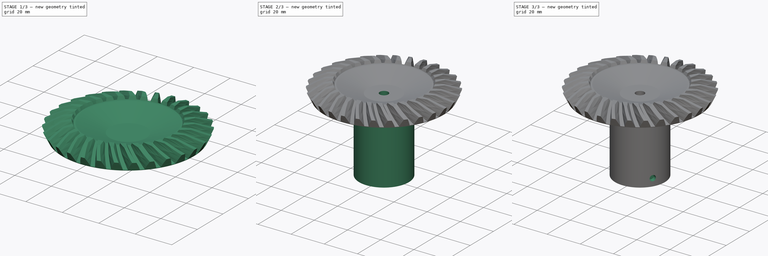
[diagram: build sequence overview — one tinted view per stage of 3, left to right]
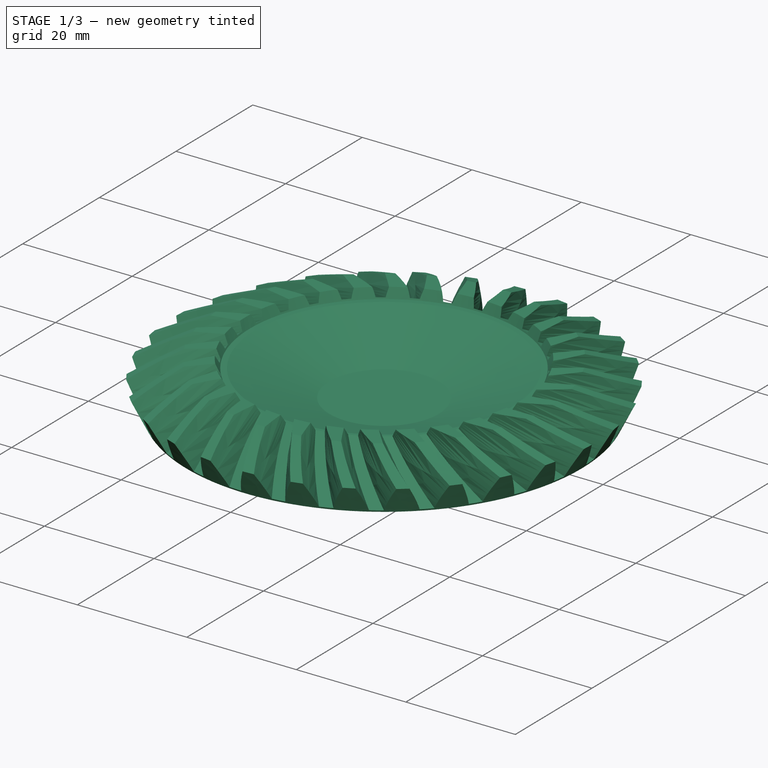
[diagram: stage 1 of 3 — iso view after this stage's code; geometry added in this stage tinted green]
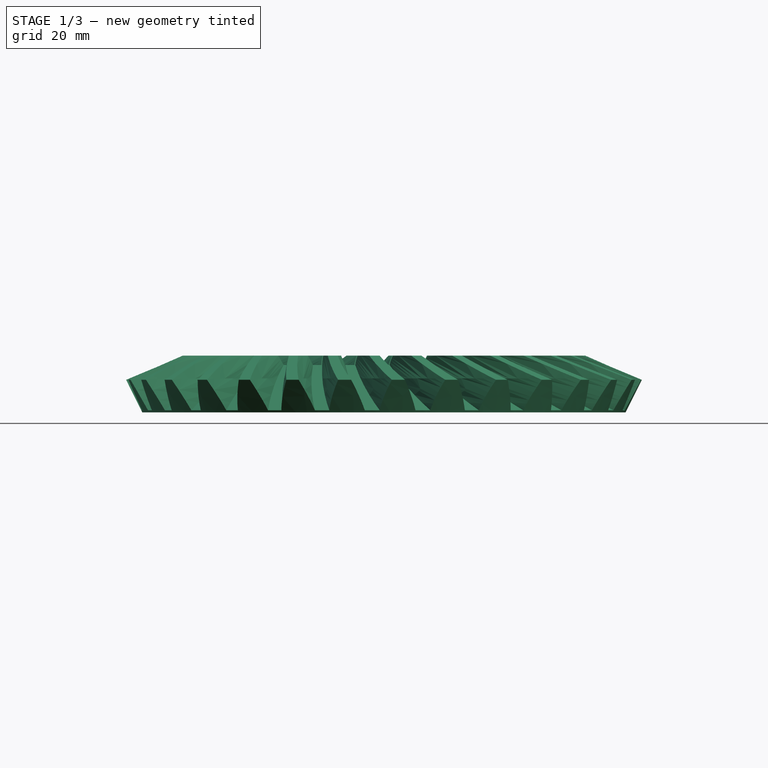
[diagram: stage 1 of 3 — front view after this stage's code; geometry added in this stage tinted green]
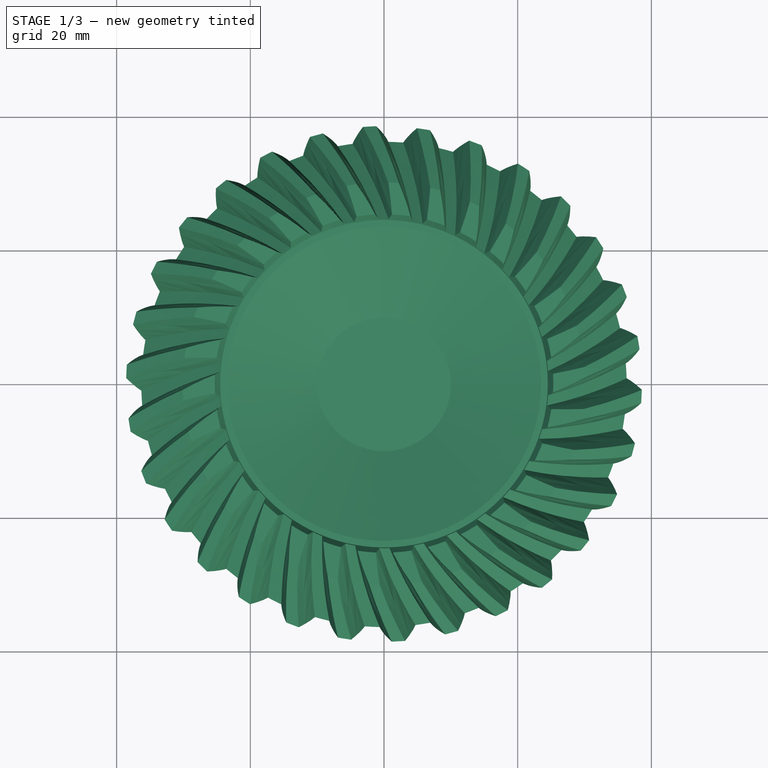
[diagram: stage 1 of 3 — top view after this stage's code; geometry added in this stage tinted green]
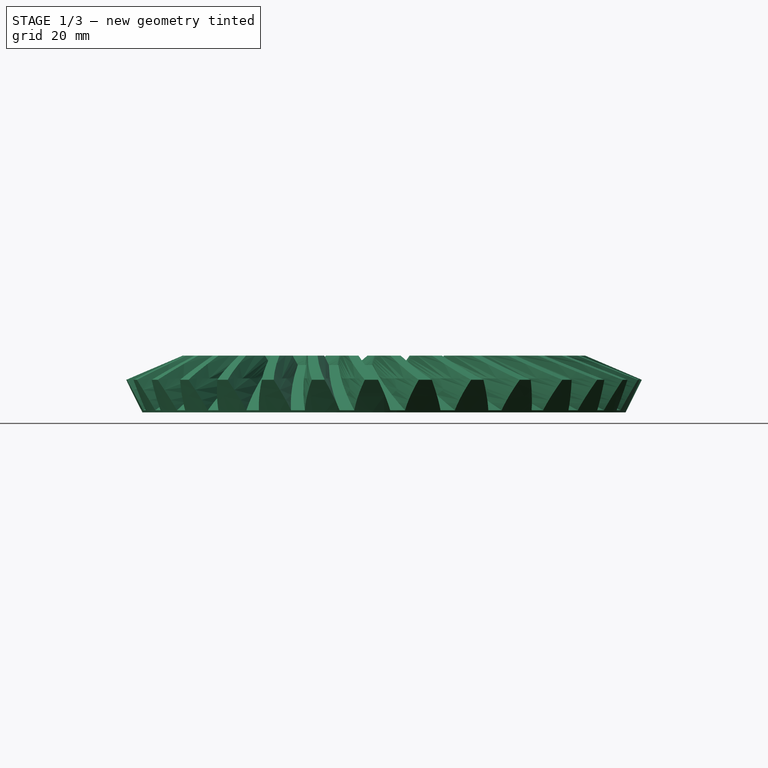
[diagram: stage 1 of 3 — right view after this stage's code; geometry added in this stage tinted green]
FCSTD DOCUMENT  (FreeCAD 0.19R24276 (Git))
Label: Art56GearPlate
License: All rights reserved
LicenseURL: http://en.wikipedia.org/wiki/All_rights_reserved
objects: Sketcher::SketchObject×5, PartDesign::Pocket×3, PartDesign::CoordinateSystem×3, PartDesign::Line×3, Part::Feature×1, Part::FeaturePython×1, PartDesign::FeatureBase×1, PartDesign::Groove×1, Spreadsheet::Sheet×1, PartDesign::Revolution×1, PartDesign::Plane×1, PartDesign::PolarPattern×1, PartDesign::Body×1
note: 27 computed .brp shape members not serialized (recipe doc carries the construction recipe); baked Part::Feature solids carry a one-line shape summary decoded from their .brp

FEATURE [Part::Feature] Part__Feature  label="Bevel Gear Plate"
  Placement = pos=(0,0,21.4333) rot=(0,0,-1;0.047997rad)
  shape: bbox 77.38 x 77.37 x 10.38 mm, 182 faces (baked)
FEATURE [Part::FeaturePython] bevelgear  # WARN: FeaturePython — macro-defined, semantics opaque (R4)
  backlash = 0
  beta = -10
  clearance = 0.1
  height = 10.2
  module = 2.85
  numpoints = 20
  pitch_angle = 63.435
  pressure_angle = 20
  reset_origin = true
  teeth = 30
  version = 0.0.3
FEATURE [PartDesign::FeatureBase] BaseFeature
  BaseFeature = -> bevelgear
FEATURE [Sketcher::SketchObject] Sketch
  FullyConstrained = true
  MapMode = 5
  Placement = pos=(0,0,0) rot=(1,0,0;1.5708rad)
  Support = -> [XZ_Plane]
  sketch-geometry (12):
    g0: LineSegment StartX=36.15 StartY=0 StartZ=0 EndX=41.15 EndY=10 EndZ=0
    g1: LineSegment StartX=41.15 StartY=10 StartZ=0 EndX=61.15 EndY=10 EndZ=0
    g2: LineSegment StartX=61.15 StartY=10 StartZ=0 EndX=61.15 EndY=0 EndZ=0
    g3: LineSegment StartX=61.15 StartY=0 StartZ=0 EndX=36.15 EndY=0 EndZ=0
    g4: LineSegment StartX=0 StartY=2 StartZ=0 EndX=10 EndY=2 EndZ=0
    g5: LineSegment StartX=10 StartY=2 StartZ=0 EndX=23.5 EndY=6.85 EndZ=0
    g6: LineSegment StartX=23.5 StartY=6.85 StartZ=0 EndX=24.5 EndY=6.85 EndZ=0
    g7: LineSegment StartX=24.5 StartY=6.85 StartZ=0 EndX=25.325 EndY=8.5 EndZ=0
    g8: LineSegment StartX=0 StartY=17 StartZ=0 EndX=0 EndY=2 EndZ=0
    g9: LineSegment StartX=25.325 StartY=8.5 StartZ=0 EndX=35 EndY=8.5 EndZ=0
    g10: LineSegment StartX=35 StartY=8.5 StartZ=0 EndX=35 EndY=17 EndZ=0
    g11: LineSegment StartX=35 StartY=17 StartZ=0 EndX=0 EndY=17 EndZ=0
  constraints (36):
    c: PointOnObject(g0,g-1)
    c: Coincident(g0,g1)
    c: Horizontal(g1)
    c: Coincident(g1,g2)
    c: Vertical(g2)
    c: Coincident(g2,g3)
    c: Coincident(g3,g0)
    c: Horizontal(g3)
    c: Angle(g0,g-2) = 0.463647
    c: DistanceX(g-1,g0) = 36.15
    c: DistanceX(g3,g3) = 25
    c: DistanceY(g2,g2) = 10
    c: PointOnObject(g4,g-2)
    c: Horizontal(g4)
    c: Coincident(g4,g5)
    c: Coincident(g5,g6)
    c: Coincident(g6,g7)
    c: PointOnObject(g8,g-2)
    c: Coincident(g8,g4)
    c: DistanceX(g4,g4) = 10
    c: DistanceY(g5,g5) = 4.85
    c: DistanceX(g4,g5) = 23.5
    c: DistanceX(g6,g6) = 1
    c: Parallel(g7,g0)
    c: DistanceY(g8,g8) = 15
    c: Horizontal(g6)
    c: DistanceY(g-1,g4) = 2
    c: Coincident(g7,g9)
    c: Horizontal(g9)
    c: Coincident(g9,g10)
    c: Vertical(g10)
    c: Coincident(g10,g11)
    c: Coincident(g11,g8)
    c: Horizontal(g11)
    c: DistanceY(g-1,g7) = 8.5
    c: DistanceX(g11,g11) = 35
FEATURE [PartDesign::Groove] Groove
  Angle = 360
  Axis = (0,2e-16,1)
  Base = (0,0,0)
  BaseFeature = -> BaseFeature
  Profile = -> Sketch
  ReferenceAxis = -> Sketch [V_Axis]
  Refine = true
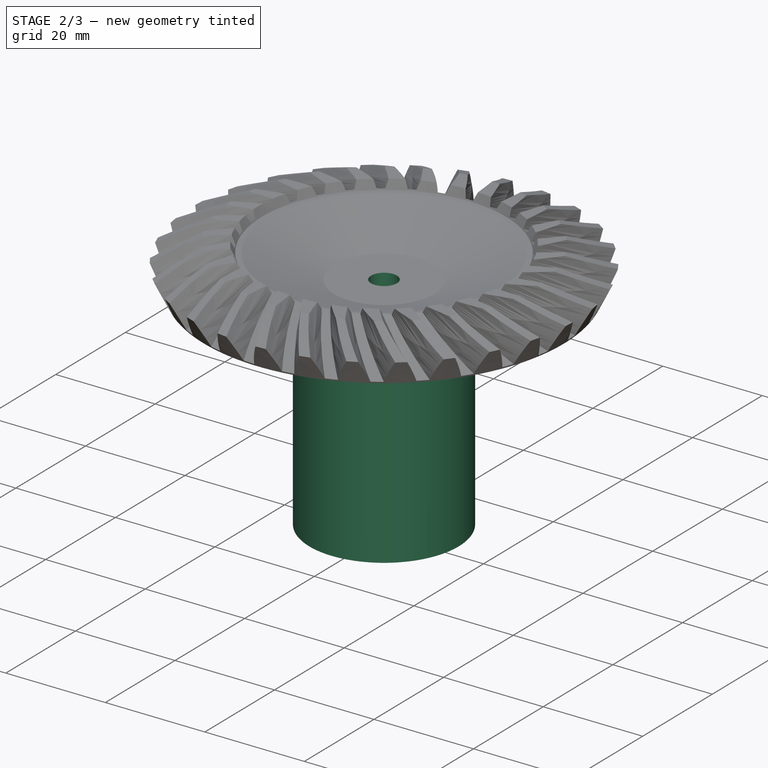
[diagram: stage 2 of 3 — iso view after this stage's code; geometry added in this stage tinted green]
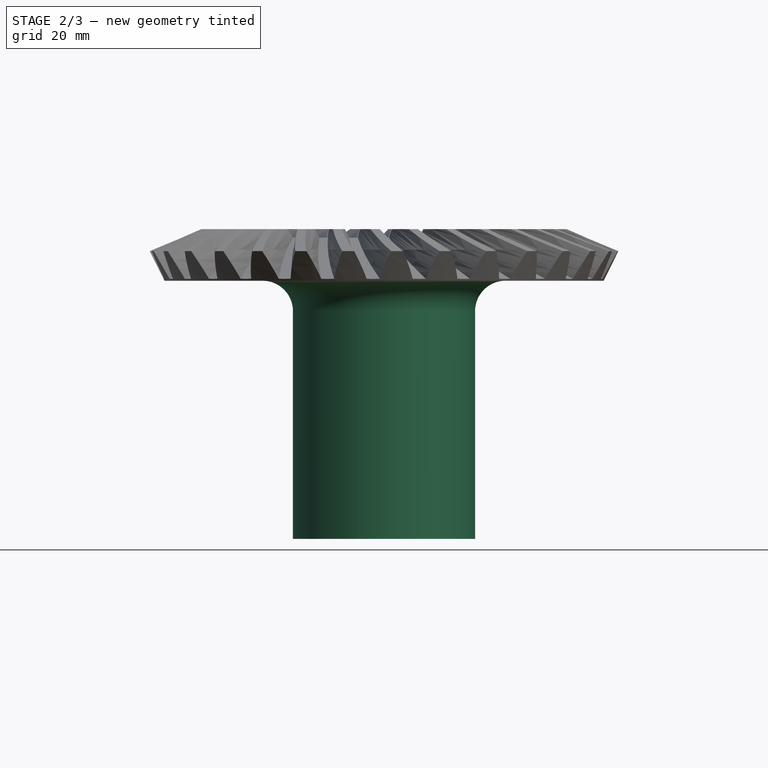
[diagram: stage 2 of 3 — front view after this stage's code; geometry added in this stage tinted green]
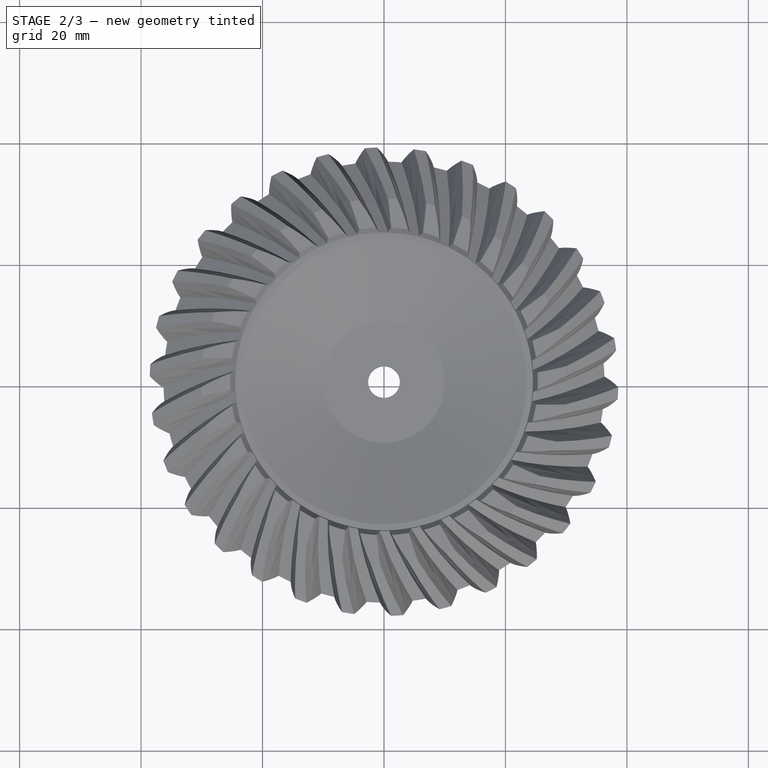
[diagram: stage 2 of 3 — top view after this stage's code; geometry added in this stage tinted green]
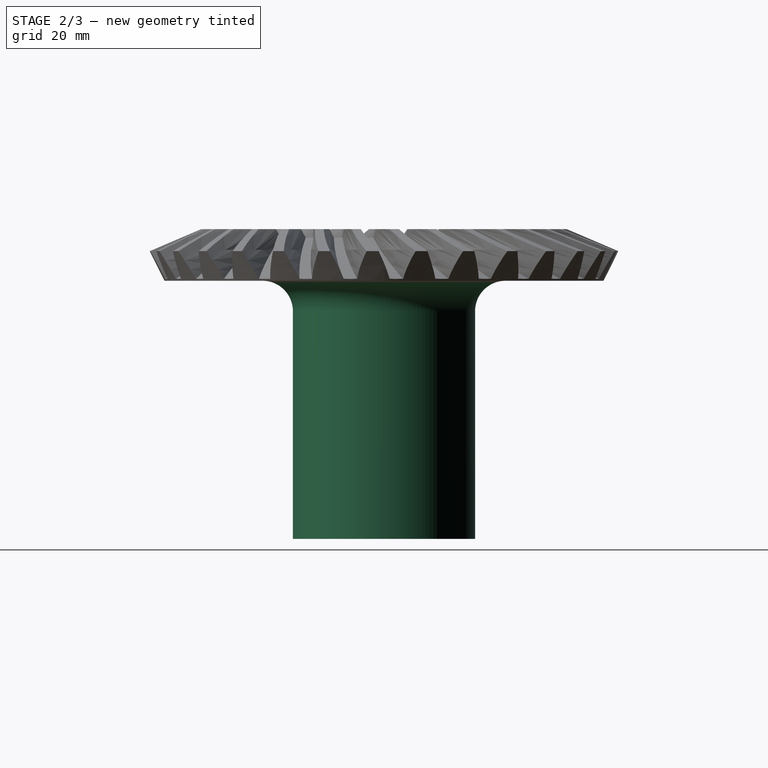
[diagram: stage 2 of 3 — right view after this stage's code; geometry added in this stage tinted green]
FEATURE [Sketcher::SketchObject] Sketch001
  FullyConstrained = true
  MapMode = 5
  Placement = pos=(0,0,0) rot=(0.57735,0.57735,0.57735;2.0944rad)
  Support = -> [YZ_Plane]
  expr: Constraints[8] = Spreadsheet.Bearing655ZZBodyRadius
  sketch-geometry (5):
    g0: LineSegment StartX=20 StartY=0 StartZ=0 EndX=8.2 EndY=0 EndZ=0
    g1: LineSegment StartX=8.2 StartY=0 StartZ=0 EndX=8.2 EndY=-42.5 EndZ=0
    g2: LineSegment StartX=8.2 StartY=-42.5 StartZ=0 EndX=15 EndY=-42.5 EndZ=0
    g3: LineSegment StartX=15 StartY=-42.5 StartZ=0 EndX=15 EndY=-5 EndZ=0
    g4: ArcOfCircle CenterX=20 CenterY=-5 CenterZ=0 NormalX=0 NormalY=0 NormalZ=1 AngleXU=0 Radius=5 StartAngle=1.5708 EndAngle=3.14159
  constraints (14):
    c: Horizontal(g0)
    c: Coincident(g0,g1)
    c: Vertical(g1)
    c: Coincident(g1,g2)
    c: Horizontal(g2)
    c: Coincident(g2,g3)
    c: Vertical(g3)
    c: Tangent(g4,g3) = 1.5708
    c: DistanceX(g-1,g0) = 8.2
    c: DistanceY(g3,g3) = 37.5
    c: Radius(g4) = 5
    c: Tangent(g4,g0) = -1.5708
    c: DistanceX(g-1,g2) = 15
    c: PointOnObject(g0,g-1)
FEATURE [Spreadsheet::Sheet] Spreadsheet
  cells = A2=M3BoltBodyRadius; B2(M3BoltBodyRadius)=1.7; A3=M3BoltHeadRadius; B3(M3BoltHeadRadius)=2.95; A4=M3NutCircumradius; B4(M3NutCircumradius)=3.35; A5=M3NutThickness; B5(M3NutThickness)=3; A6=Bearing655ZZBodyRadius; B6(Bearing655ZZBodyRadius)=8.199999999999999; A7=MagnetRadius; B7(MagnetRadius)=4.2; A8=MagnetThickness; B8(MagnetThickness)=1.1; A9=M2BoltBodyRadius; B9(M2BoltBodyRadius)=1.2; A10=M2BoltHeadRadius; B10(M2BoltHeadRadius)=2.1; A11=M5BoltBodyRadius; B11(M5BoltBodyRadius)=2.6
FEATURE [PartDesign::Revolution] Revolution
  Angle = 360
  Axis = (-2e-16,3e-16,1)
  Base = (0,0,0)
  BaseFeature = -> Groove
  Profile = -> Sketch001
  ReferenceAxis = -> Sketch001 [V_Axis]
  Refine = true
  Reversed = true
FEATURE [Sketcher::SketchObject] Sketch002
  FullyConstrained = true
  MapMode = 5
  Placement = pos=(0,4e-16,2) rot=(0,0,1;0rad)
  Support = -> [Revolution]
  expr: Constraints[1] = Spreadsheet.M5BoltBodyRadius
  sketch-geometry (1):
    g0: Circle CenterX=0 CenterY=0 CenterZ=0 NormalX=0 NormalY=0 NormalZ=1 AngleXU=0 Radius=2.6
  constraints (2):
    c: Coincident(g0,g-1)
    c: Radius(g0) = 2.6
FEATURE [PartDesign::Pocket] Pocket
  BaseFeature = -> Revolution
  Length = 5
  Length2 = 100
  Profile = -> Sketch002
  Refine = true
  Type = 1
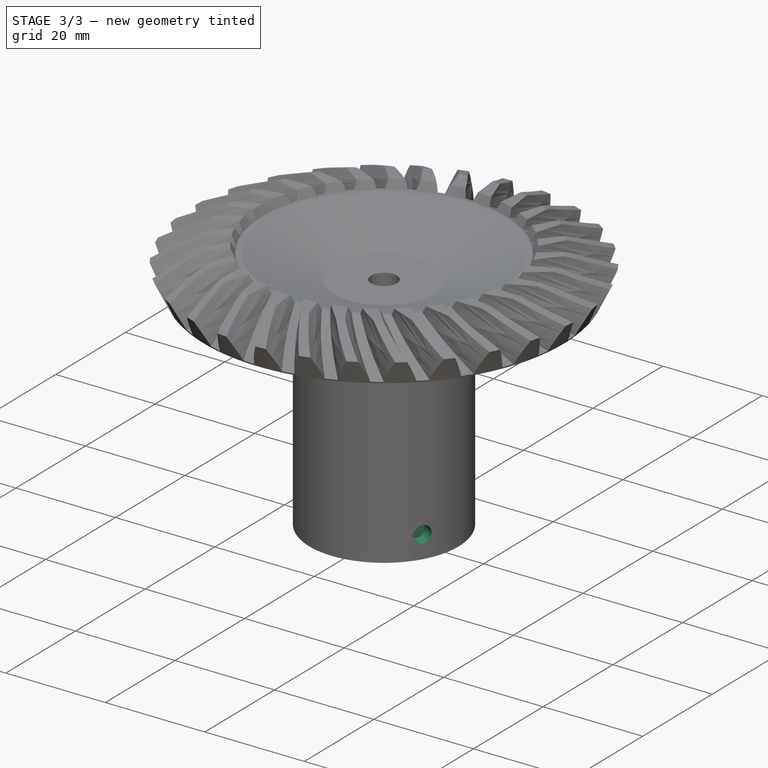
[diagram: stage 3 of 3 — iso view after this stage's code; geometry added in this stage tinted green]
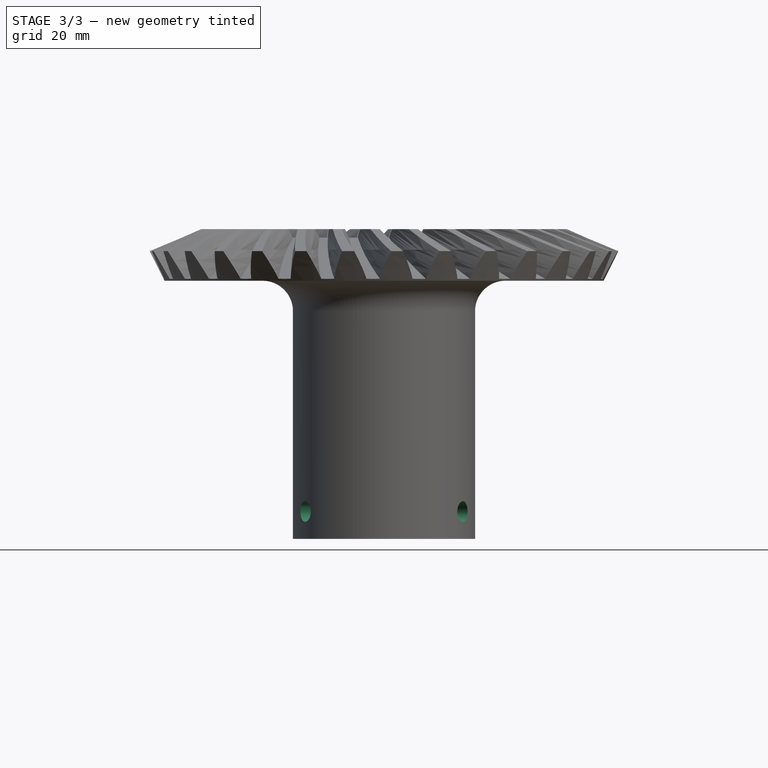
[diagram: stage 3 of 3 — front view after this stage's code; geometry added in this stage tinted green]
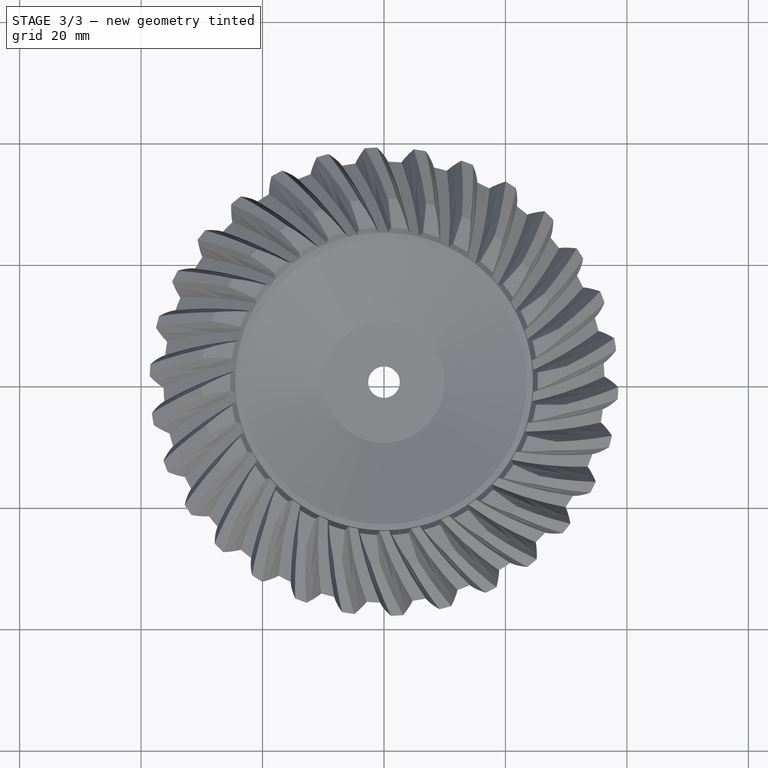
[diagram: stage 3 of 3 — top view after this stage's code; geometry added in this stage tinted green]
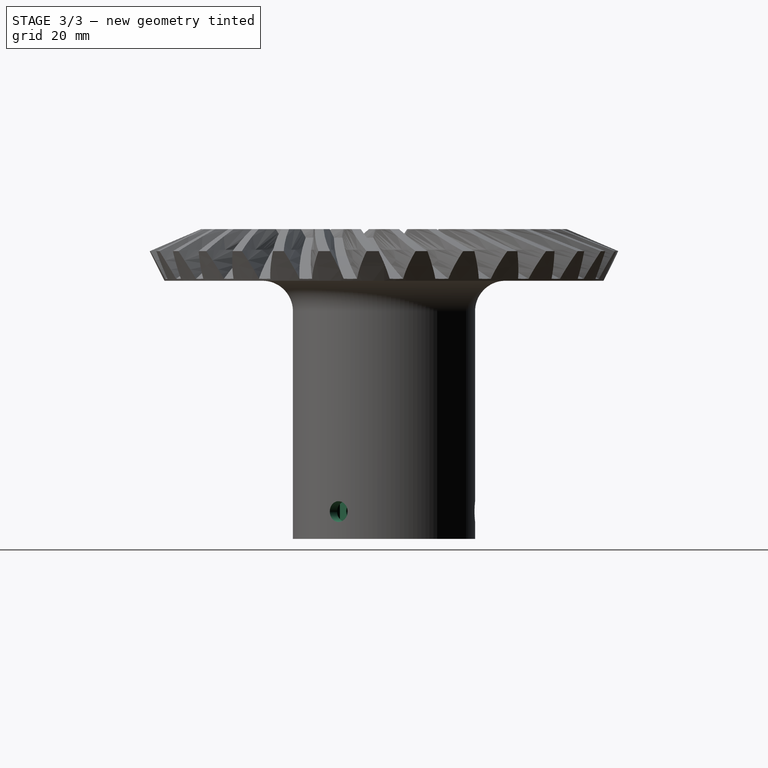
[diagram: stage 3 of 3 — right view after this stage's code; geometry added in this stage tinted green]
FEATURE [Sketcher::SketchObject] Sketch003
  ExternalGeometry = -> [Pocket]
  FullyConstrained = true
  MapMode = 5
  Placement = pos=(0,0,0) rot=(1,0,0;1.5708rad)
  Support = -> [XZ_Plane]
  expr: Constraints[1] = Spreadsheet.M3BoltBodyRadius
  sketch-geometry (1):
    g0: Circle CenterX=0 CenterY=-38 CenterZ=0 NormalX=0 NormalY=0 NormalZ=1 AngleXU=0 Radius=1.7
  constraints (3):
    c: PointOnObject(g0,g-2)
    c: Radius(g0) = 1.7
    c: DistanceY(g-3,g0) = 4.5
FEATURE [PartDesign::Pocket] Pocket001
  BaseFeature = -> Pocket
  Length = 5
  Length2 = 100
  Profile = -> Sketch003
  Refine = true
  Type = 1
FEATURE [PartDesign::Plane] DatumPlane
  AttachmentOffset = pos=(0,0,-11) rot=(0,0,1;0rad)
  Length = 91.5901
  MapMode = 5
  Placement = pos=(0,11,2.4e-15) rot=(1,0,0;1.5708rad)
  ResizeMode = 0
  Support = -> [XZ_Plane]
  Width = 81.9334
FEATURE [Sketcher::SketchObject] Sketch004
  ExternalGeometry = -> [Pocket001]
  FullyConstrained = true
  MapMode = 5
  Placement = pos=(0,11,2.4e-15) rot=(1,0,0;1.5708rad)
  Support = -> [DatumPlane]
  expr: Constraints[27] = Spreadsheet.M3NutCircumradius
  sketch-geometry (10):
    g0: LineSegment StartX=2.90119 StartY=-39.675 StartZ=0 EndX=2.90119 EndY=-36.325 EndZ=0
    g1: LineSegment StartX=2.90119 StartY=-36.325 StartZ=0 EndX=0 EndY=-34.65 EndZ=0
    g2: LineSegment StartX=0 StartY=-34.65 StartZ=0 EndX=-2.90119 EndY=-36.325 EndZ=0
    g3: LineSegment StartX=-2.90119 StartY=-36.325 StartZ=0 EndX=-2.90119 EndY=-39.675 EndZ=0
    g4: LineSegment StartX=-2.90119 StartY=-39.675 StartZ=0 EndX=0 EndY=-41.35 EndZ=0
    g5: LineSegment StartX=0 StartY=-41.35 StartZ=0 EndX=2.90119 EndY=-39.675 EndZ=0
    g6: Circle CenterX=0 CenterY=-38 CenterZ=0 NormalX=0 NormalY=0 NormalZ=1 AngleXU=0 Radius=3.35
    g7: LineSegment StartX=-2.90119 StartY=-36.325 StartZ=0 EndX=-2.90119 EndY=-46.325 EndZ=0
    g8: LineSegment StartX=-2.90119 StartY=-46.325 StartZ=0 EndX=2.90119 EndY=-46.325 EndZ=0
    g9: LineSegment StartX=2.90119 StartY=-46.325 StartZ=0 EndX=2.90119 EndY=-36.325 EndZ=0
  constraints (25):
    c: Coincident(g0,g1)
    c: Coincident(g1,g2)
    c: Coincident(g2,g3)
    c: Coincident(g3,g4)
    c: Coincident(g4,g5)
    c: Coincident(g5,g0)
    c: Equal(g0, g1-g5) x5
    c: PointOnObject(g0,g6)
    c: PointOnObject(g1,g6)
    c: PointOnObject(g2,g6)
    c: PointOnObject(g3,g6)
    c: PointOnObject(g4,g6)
    c: PointOnObject(g5,g6)
    c: PointOnObject(g6,g-2)
    c: Vertical(g3)
    c: Coincident(g7,g8)
    c: Coincident(g8,g9)
    c: Vertical(g9)
    c: Coincident(g9,g1)
    c: Coincident(g7,g2)
    c: Vertical(g7)
    c: Horizontal(g8)
    c: DistanceY(g9,g9) = 10
    c: Radius(g6) = 3.35
    c: DistanceY(g-3,g6) = 4.5
FEATURE [PartDesign::Pocket] Pocket002
  BaseFeature = -> Pocket001
  Length = 3
  Length2 = 100
  Midplane = true
  Profile = -> Sketch004
  Refine = true
  Type = 0
  expr: Length = Spreadsheet.M3NutThickness
FEATURE [PartDesign::PolarPattern] PolarPattern
  Angle = 360
  Axis = -> Z_Axis
  BaseFeature = -> Pocket002
  Occurrences = 3
  Originals = -> [Pocket001,Pocket002]
  Refine = true
FEATURE [PartDesign::CoordinateSystem] LCS_Art56GearPlate
  AttacherType = Attacher::AttachEngine3D
  MapMode = 11
  Placement = pos=(0,0,2) rot=(0,0,1;1.5708rad)
  Support = -> [PolarPattern]
FEATURE [PartDesign::CoordinateSystem] LCS_Bearing
  AttacherType = Attacher::AttachEngine3D
  MapMode = 11
  Placement = pos=(0,-1.8e-15,5e-16) rot=(1,0,0;3.14159rad)
  Support = -> [PolarPattern]
FEATURE [PartDesign::Line] HoleAxis_1
  AttacherType = Attacher::AttachEngineLine
  Length = 4.79083
  MapMode = 19
  Placement = pos=(10.8253,-6.25,-38) rot=(-0.377964,0.654654,0.654654;3.86433rad)
  ResizeMode = 1
  Support = -> [PolarPattern]
FEATURE [PartDesign::Line] HoleAxis_2
  AttacherType = Attacher::AttachEngineLine
  Length = 4.79083
  MapMode = 19
  Placement = pos=(0,12.5,-38) rot=(1,0,0;1.5708rad)
  ResizeMode = 1
  Support = -> [PolarPattern]
FEATURE [PartDesign::Line] HoleAxis_3
  AttacherType = Attacher::AttachEngineLine
  Length = 4.79083
  MapMode = 19
  Placement = pos=(-10.8253,-6.25,-38) rot=(0.377964,0.654654,0.654654;2.41886rad)
  ResizeMode = 1
  Support = -> [PolarPattern]
FEATURE [PartDesign::CoordinateSystem] LCS_Gripper
  AttacherType = Attacher::AttachEngine3D
  MapMode = 11
  Placement = pos=(9.4e-15,-1.24e-14,-42.5) rot=(1,0,0;3.14159rad)
  Support = -> [PolarPattern]
FEATURE [PartDesign::Body] Body  label="Art56GearPlate"
  BaseFeature = -> bevelgear
  Group = -> [BaseFeature,Sketch,Groove,Sketch001,Revolution,Sketch002,Pocket,Sketch003,Pocket001,DatumPlane,Sketch004,Pocket002,PolarPattern,LCS_Art56GearPlate,LCS_Bearing,HoleAxis_1,HoleAxis_2,HoleAxis_3,LCS_Gripper]
  Origin = -> Origin
  Tip = -> PolarPattern
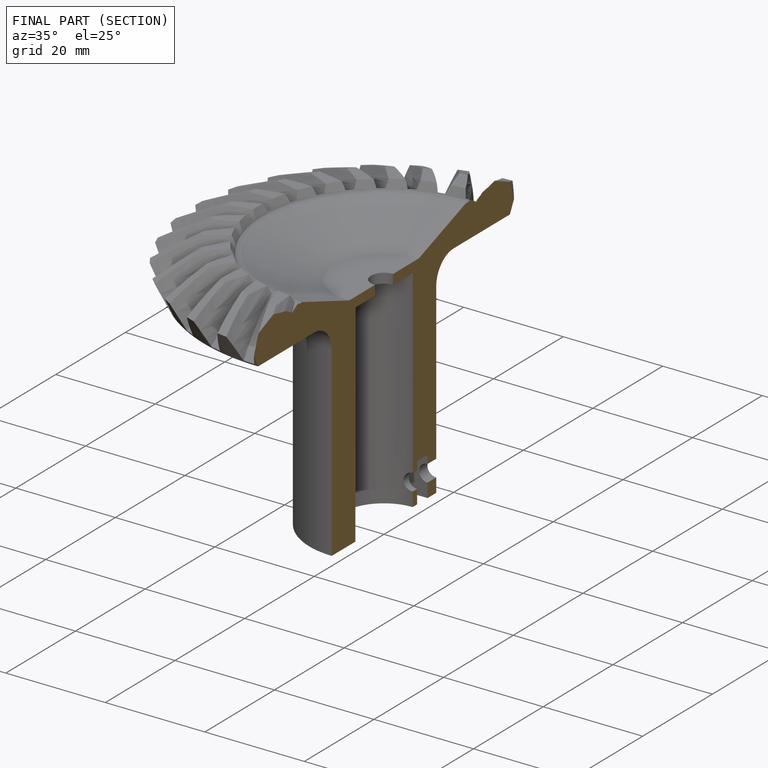
[diagram: finished part — half-section view (interior)]
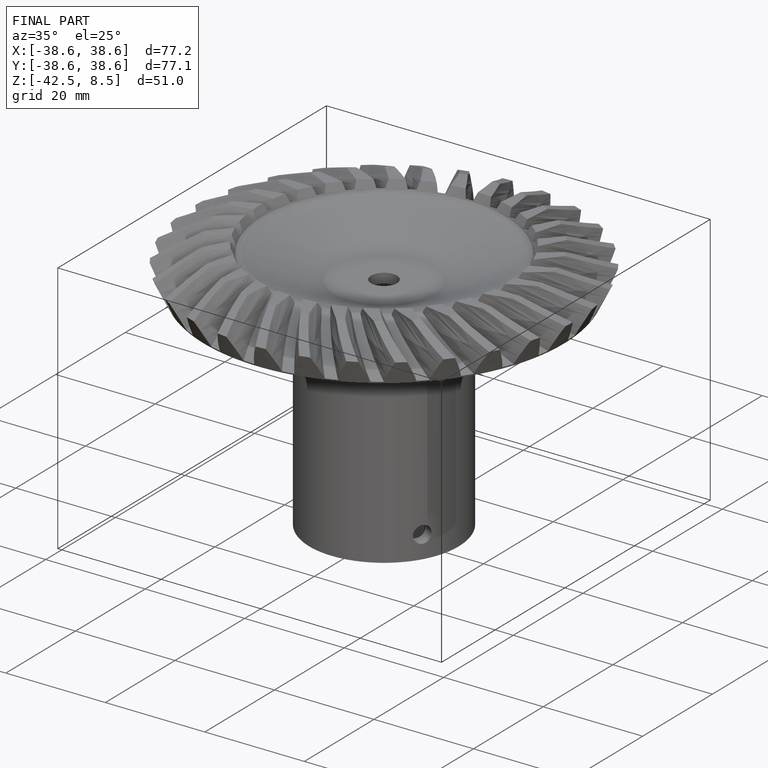
[diagram: finished part — iso view with bounding-box wireframe]
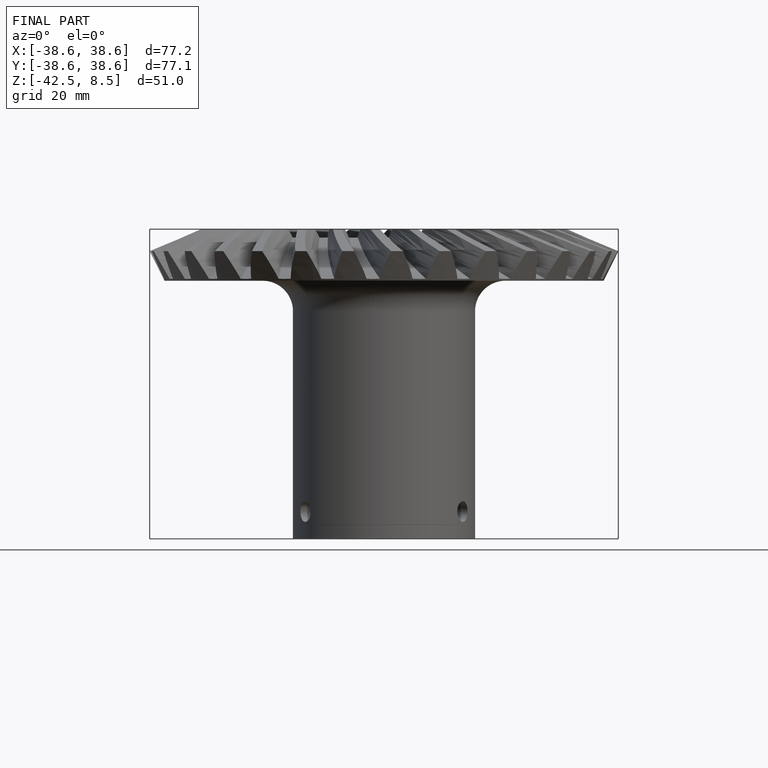
[diagram: finished part — front view with bounding-box wireframe]
